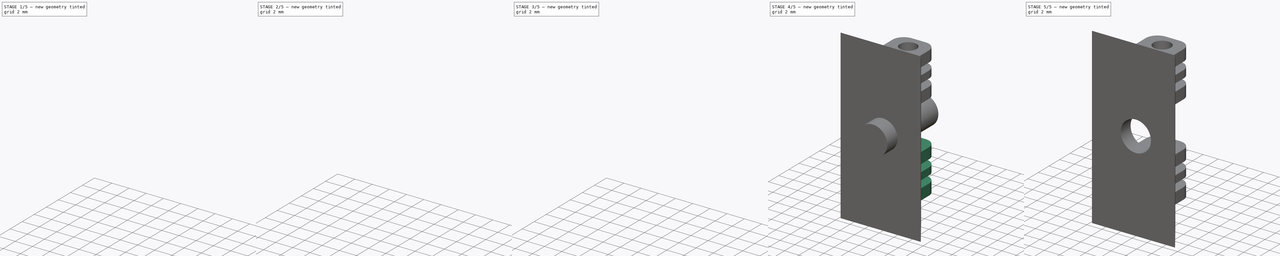
[diagram: build sequence overview — one tinted view per stage of 5, left to right]
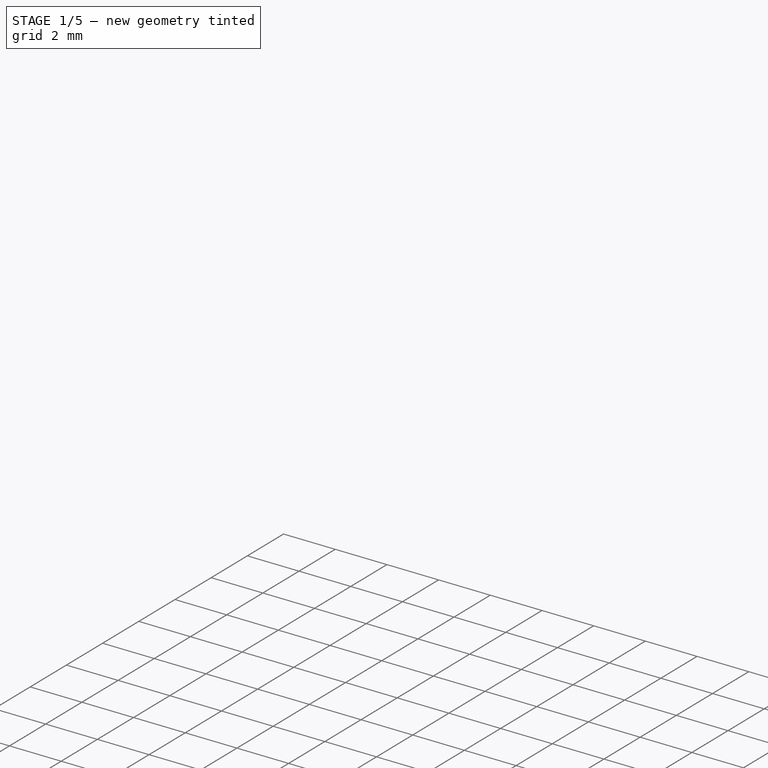
[diagram: stage 1 of 5 — iso view after this stage's code; geometry added in this stage tinted green]
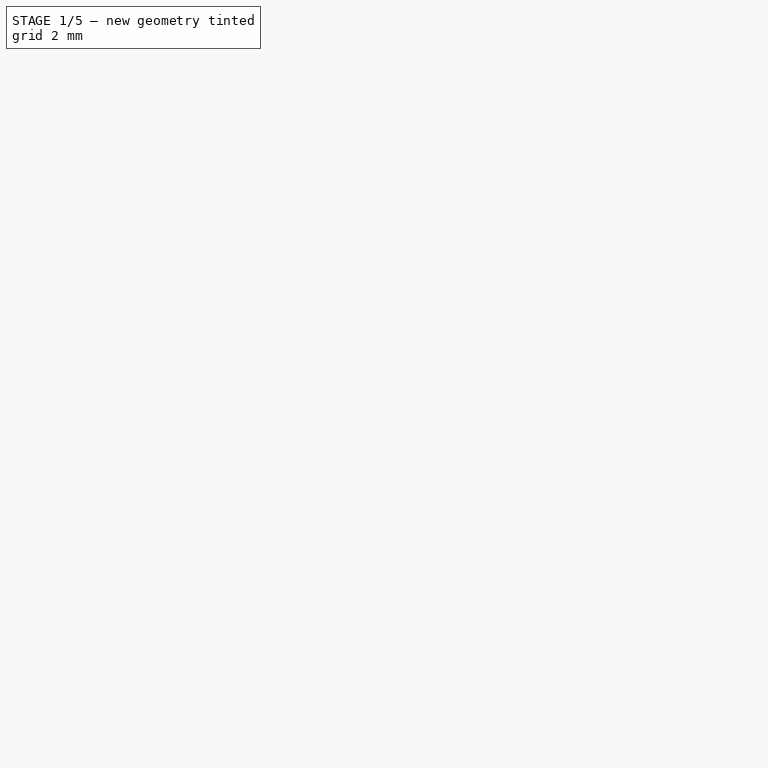
[diagram: stage 1 of 5 — front view after this stage's code; geometry added in this stage tinted green]
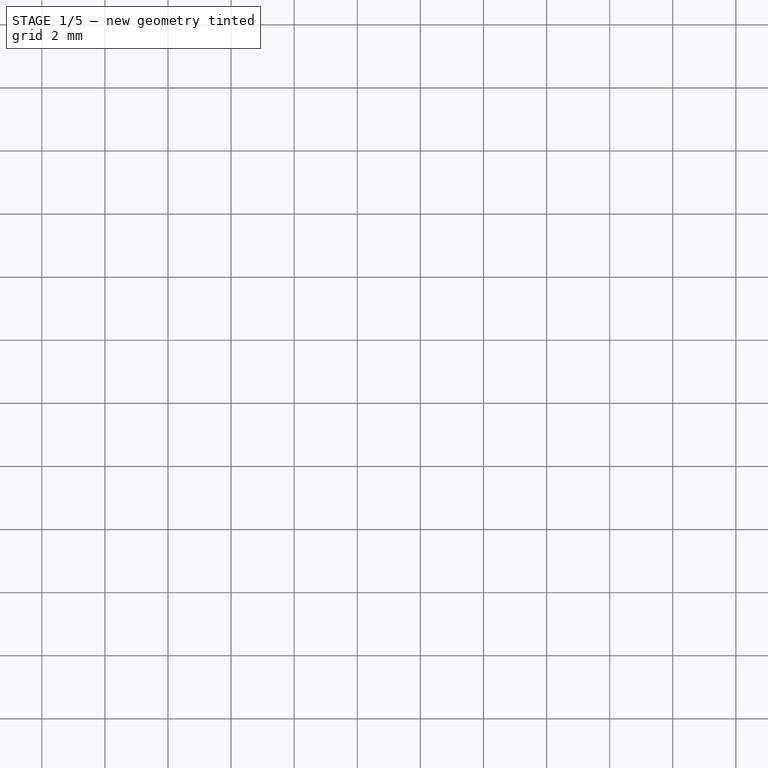
[diagram: stage 1 of 5 — top view after this stage's code; geometry added in this stage tinted green]
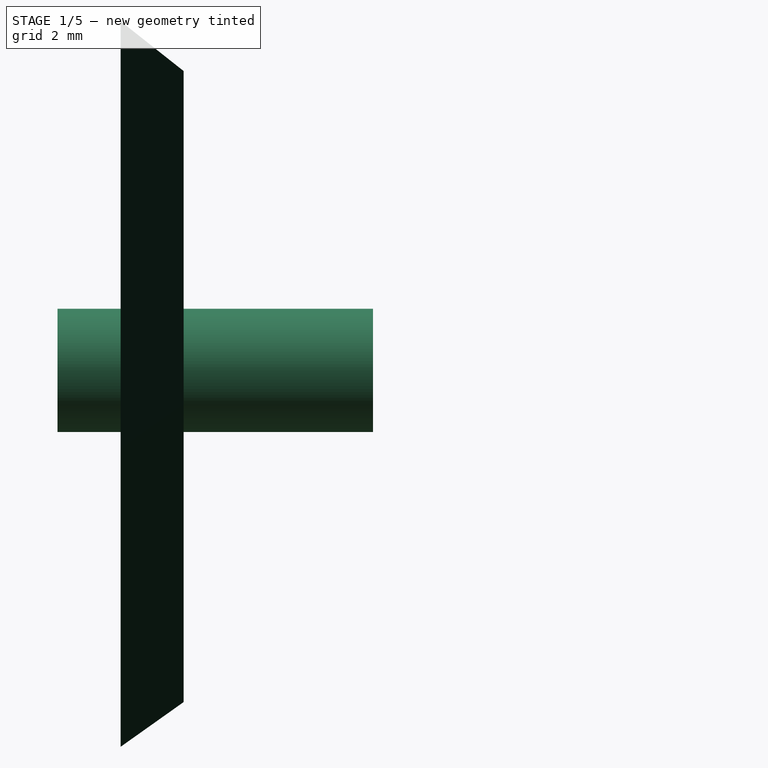
[diagram: stage 1 of 5 — right view after this stage's code; geometry added in this stage tinted green]
FCSTD DOCUMENT  (FreeCAD 0.16R6712 (Git))
Label: Base cabriada
License: All rights reserved
LicenseURL: http://en.wikipedia.org/wiki/All_rights_reserved
objects: Part::Cut×5, Sketcher::SketchObject×4, Part::Box×4, PartDesign::Pad×2, Part::Loft×1, Part::MultiFuse×1, Part::Cylinder×1, Part::Fillet×1
note: 21 computed .brp shape members not serialized (recipe doc carries the construction recipe); baked Part::Feature solids carry a one-line shape summary decoded from their .brp

FEATURE [Part::Box] Box374  label="Cubo373"
  Height = 1
  Length = 10
  Placement = pos=(-5,0.7,-1.5) rot=(0,0,1;0rad)
  Width = 10
FEATURE [Sketcher::SketchObject] Sketch017
  Placement = pos=(0,-7,0) rot=(1,0,0;1.5708rad)
  sketch-geometry (4):
    g0: LineSegment StartX=-238.671 StartY=-4.51199 StartZ=0 EndX=-230.671 EndY=-4.51199 EndZ=0
    g1: LineSegment StartX=-230.671 StartY=-4.51199 StartZ=0 EndX=-230.671 EndY=15.488 EndZ=0
    g2: LineSegment StartX=-230.671 StartY=15.488 StartZ=0 EndX=-238.671 EndY=15.488 EndZ=0
    g3: LineSegment StartX=-238.671 StartY=15.488 StartZ=0 EndX=-238.671 EndY=-4.51199 EndZ=0
  constraints (10):
    c: Coincident(g0,g1)
    c: Coincident(g1,g2)
    c: Coincident(g2,g3)
    c: Coincident(g3,g0)
    c: Horizontal(g0)
    c: Horizontal(g2)
    c: Vertical(g1)
    c: Vertical(g3)
    c: DistanceY(g3,g3) = 20
    c: DistanceX(g0,g0) = 8
FEATURE [Sketcher::SketchObject] Sketch018
  Placement = pos=(0,-9,-0.5) rot=(1,0,0;1.5708rad)
  sketch-geometry (4):
    g0: LineSegment StartX=-240.307 StartY=-5.43123 StartZ=0 EndX=-229.307 EndY=-5.43123 EndZ=0
    g1: LineSegment StartX=-229.307 StartY=-5.43123 StartZ=0 EndX=-229.307 EndY=17.5688 EndZ=0
    g2: LineSegment StartX=-229.307 StartY=17.5688 StartZ=0 EndX=-240.307 EndY=17.5688 EndZ=0
    g3: LineSegment StartX=-240.307 StartY=17.5688 StartZ=0 EndX=-240.307 EndY=-5.43123 EndZ=0
  constraints (10):
    c: Coincident(g0,g1)
    c: Coincident(g1,g2)
    c: Coincident(g2,g3)
    c: Coincident(g3,g0)
    c: Horizontal(g0)
    c: Horizontal(g2)
    c: Vertical(g1)
    c: Vertical(g3)
    c: DistanceY(g3,g3) = 23
    c: DistanceX(g0,g0) = 11
FEATURE [Part::Loft] Loft  label="Base inferior"
  Closed = false
  Placement = pos=(1,1,0) rot=(0,0,1;0rad)
  Ruled = false
  Sections = -> [Sketch018,Sketch017]
  Solid = true
FEATURE [Part::Cylinder] Cylinder  label="Cilindro"
  Angle = 360
  Height = 10
  Placement = pos=(-233.5,0,6) rot=(1,0,0;1.5708rad)
  Radius = 2
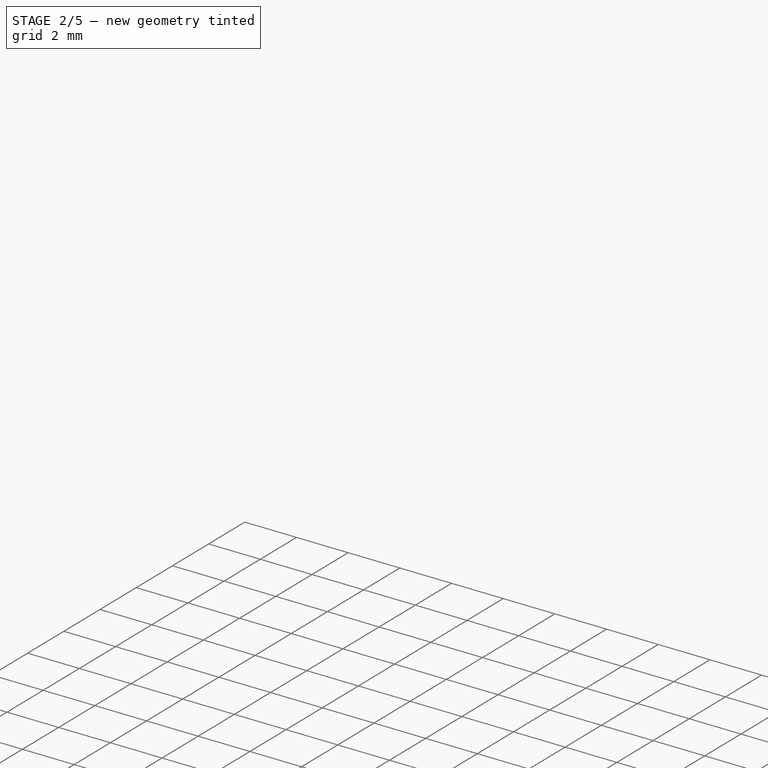
[diagram: stage 2 of 5 — iso view after this stage's code; geometry added in this stage tinted green]
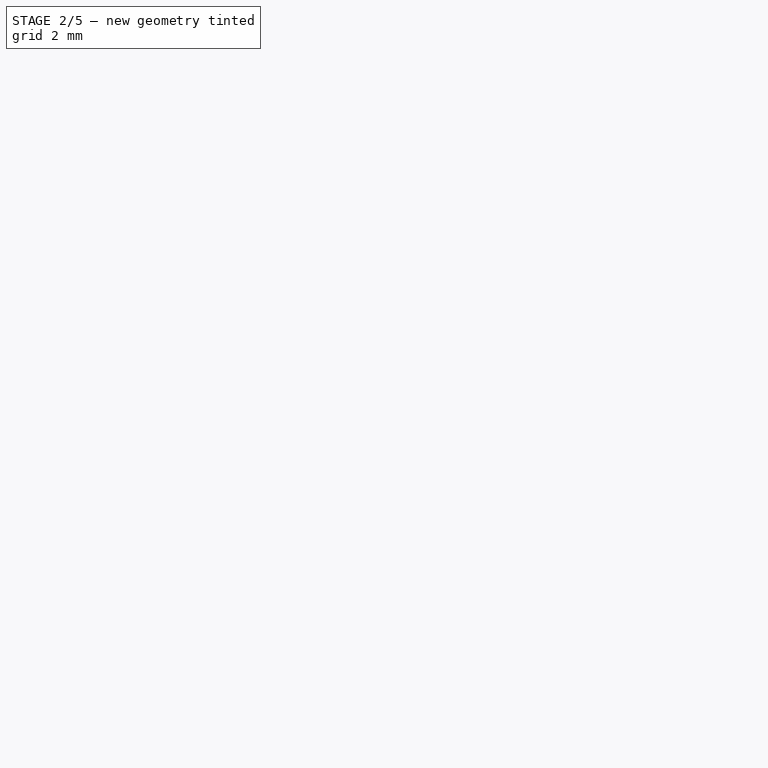
[diagram: stage 2 of 5 — front view after this stage's code; geometry added in this stage tinted green]
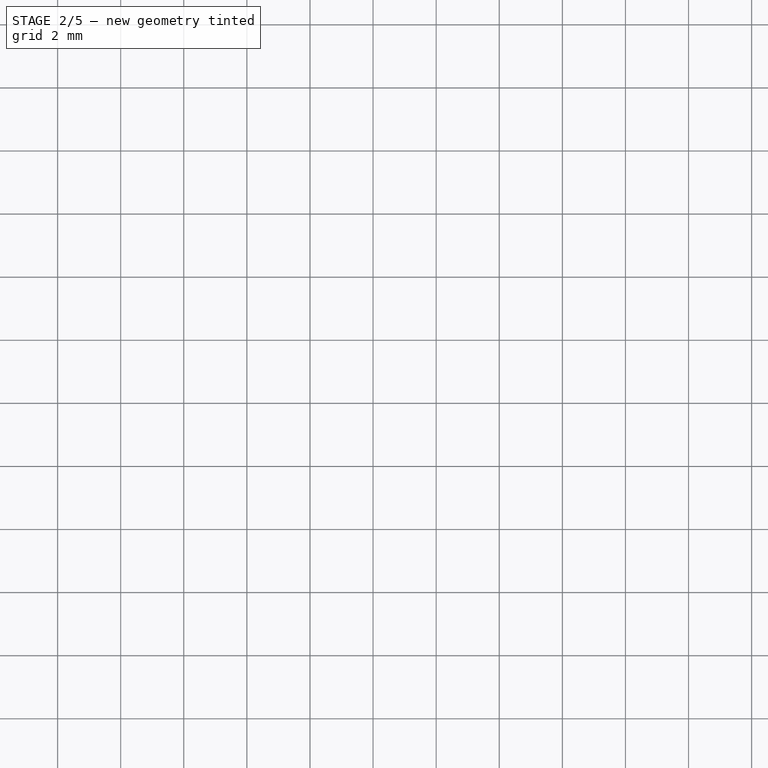
[diagram: stage 2 of 5 — top view after this stage's code; geometry added in this stage tinted green]
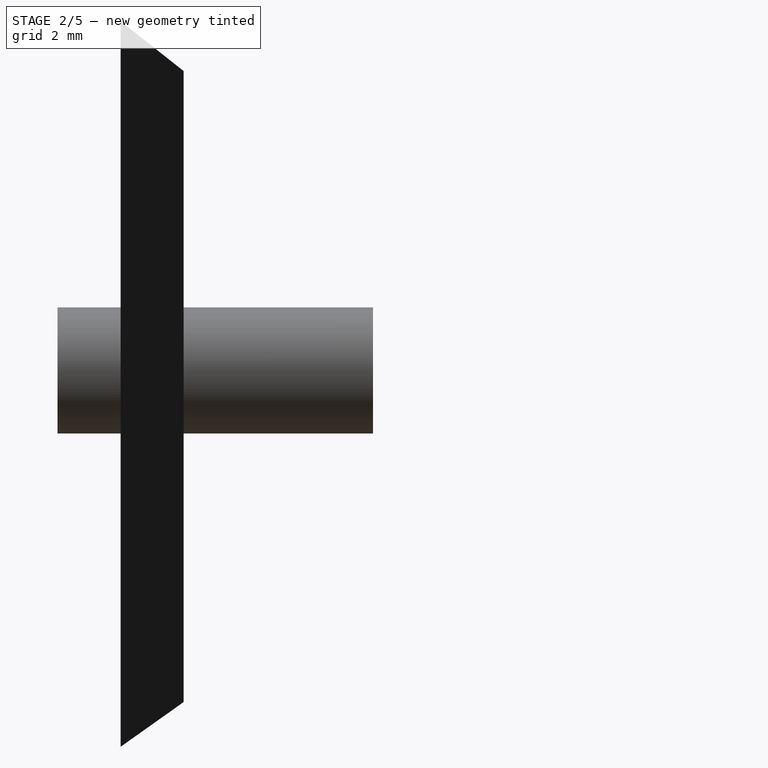
[diagram: stage 2 of 5 — right view after this stage's code; geometry added in this stage tinted green]
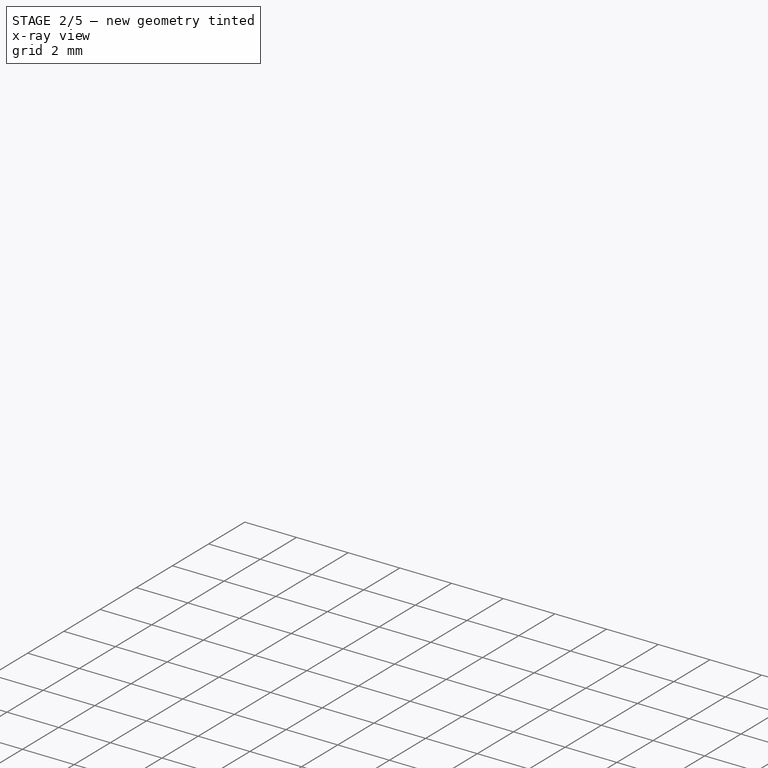
[diagram: stage 2 of 5 — x-ray composite at the iso view; earlier geometry ghosted, this stage's added geometry solid]
FEATURE [Sketcher::SketchObject] Sketch015
  sketch-geometry (7):
    g0: LineSegment StartX=-0.94599 StartY=5 StartZ=0 EndX=0.94599 EndY=5 EndZ=0
    g1: LineSegment StartX=2.5 StartY=3.44599 StartZ=0 EndX=2.5 EndY=0 EndZ=0
    g2: LineSegment StartX=2.5 StartY=0 StartZ=0 EndX=-2.5 EndY=0 EndZ=0
    g3: LineSegment StartX=-2.5 StartY=0 StartZ=0 EndX=-2.5 EndY=3.44599 EndZ=0
    g4: ArcOfCircle CenterX=0.94599 CenterY=3.44599 CenterZ=0 NormalX=0 NormalY=0 NormalZ=1 Radius=1.55401 StartAngle=0 EndAngle=1.5708
    g5: ArcOfCircle CenterX=-0.94599 CenterY=3.44599 CenterZ=0 NormalX=0 NormalY=0 NormalZ=1 Radius=1.55401 StartAngle=1.5708 EndAngle=3.14159
    g6: Circle CenterX=0 CenterY=2.97603 CenterZ=0 NormalX=0 NormalY=0 NormalZ=1 Radius=1.15
  constraints (19):
    c: Coincident(g1,g2)
    c: Coincident(g2,g3)
    c: Horizontal(g0)
    c: Horizontal(g2)
    c: Vertical(g1)
    c: Vertical(g3)
    c: PointOnObject(g1,g-1)
    c: Tangent(g0,g4) = 1.5708
    c: Tangent(g1,g4) = 1.5708
    c: Tangent(g0,g5) = 1.5708
    c: Tangent(g3,g5) = 1.5708
    c: Symmetric(g2,g1,g-2)
    c: Equal(g4,g5)
    c: DistanceX(g2,g2) = 5
    c: DistanceY(g1,g0) = 5
    c: PointOnObject(g6,g-2)
    c: Radius(g6) = 1.15
    c: Radius(g5) = 1.55401
    c: DistanceY(g2,g6) = 2.97603
FEATURE [PartDesign::Pad] Pad001  label="Pivote del piso001"
  Length = 6
  Length2 = 100
  Midplane = true
  Sketch = -> Sketch015
  Type = 0
FEATURE [Part::Box] Box375  label="Cubo374"
  Height = 1
  Length = 10
  Placement = pos=(-6,0.7,0.5) rot=(0,0,1;0rad)
  Width = 10
FEATURE [Part::Cut] Cut103
  Base = -> Pad001
  Tool = -> Box374
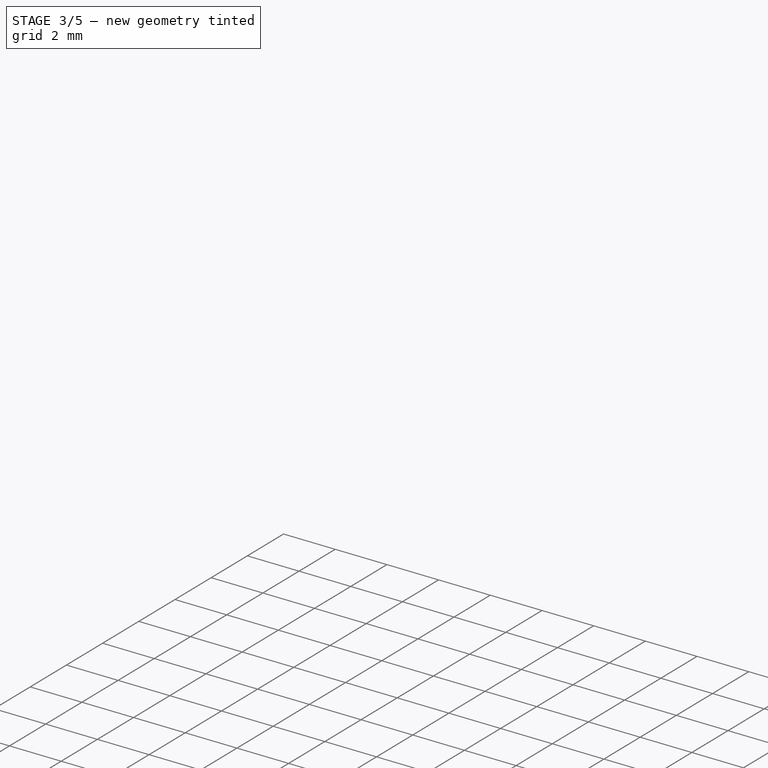
[diagram: stage 3 of 5 — iso view after this stage's code; geometry added in this stage tinted green]
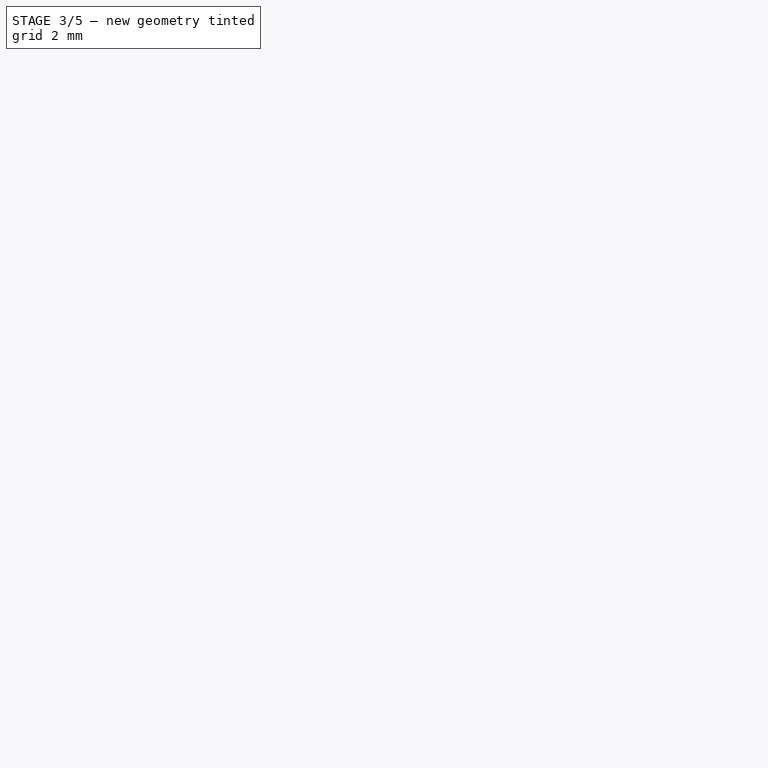
[diagram: stage 3 of 5 — front view after this stage's code; geometry added in this stage tinted green]
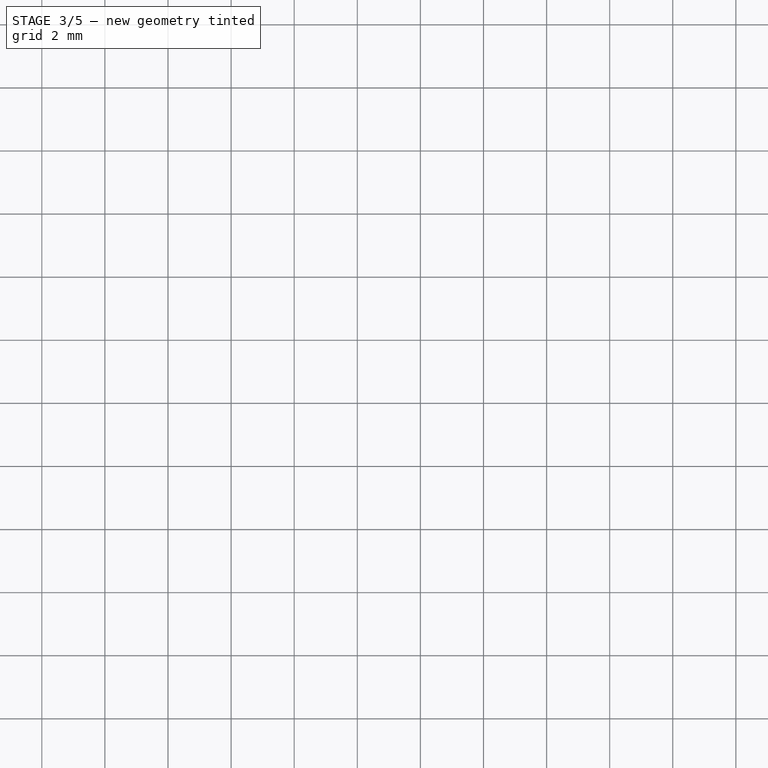
[diagram: stage 3 of 5 — top view after this stage's code; geometry added in this stage tinted green]
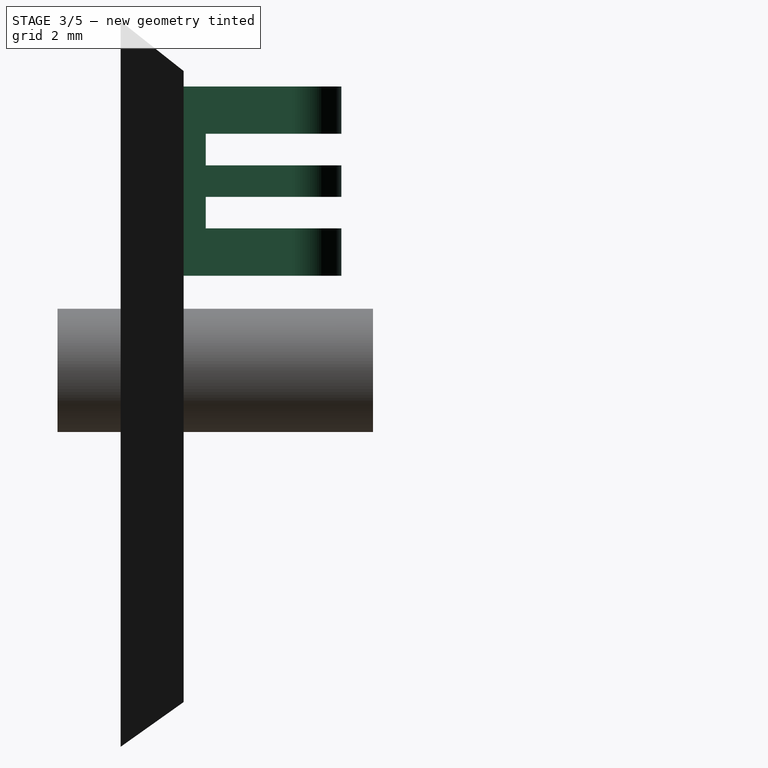
[diagram: stage 3 of 5 — right view after this stage's code; geometry added in this stage tinted green]
FEATURE [Sketcher::SketchObject] Sketch003
  sketch-geometry (7):
    g0: LineSegment StartX=-0.94599 StartY=5 StartZ=0 EndX=0.94599 EndY=5 EndZ=0
    g1: LineSegment StartX=2.5 StartY=3.44599 StartZ=0 EndX=2.5 EndY=0 EndZ=0
    g2: LineSegment StartX=2.5 StartY=0 StartZ=0 EndX=-2.5 EndY=0 EndZ=0
    g3: LineSegment StartX=-2.5 StartY=0 StartZ=0 EndX=-2.5 EndY=3.44599 EndZ=0
    g4: ArcOfCircle CenterX=0.94599 CenterY=3.44599 CenterZ=0 NormalX=0 NormalY=0 NormalZ=1 Radius=1.55401 StartAngle=0 EndAngle=1.5708
    g5: ArcOfCircle CenterX=-0.94599 CenterY=3.44599 CenterZ=0 NormalX=0 NormalY=0 NormalZ=1 Radius=1.55401 StartAngle=1.5708 EndAngle=3.14159
    g6: Circle CenterX=0 CenterY=2.97603 CenterZ=0 NormalX=0 NormalY=0 NormalZ=1 Radius=1.15
  constraints (19):
    c: Coincident(g1,g2)
    c: Coincident(g2,g3)
    c: Horizontal(g0)
    c: Horizontal(g2)
    c: Vertical(g1)
    c: Vertical(g3)
    c: PointOnObject(g1,g-1)
    c: Tangent(g0,g4) = 1.5708
    c: Tangent(g1,g4) = 1.5708
    c: Tangent(g0,g5) = 1.5708
    c: Tangent(g3,g5) = 1.5708
    c: Symmetric(g2,g1,g-2)
    c: Equal(g4,g5)
    c: DistanceX(g2,g2) = 5
    c: DistanceY(g1,g0) = 5
    c: PointOnObject(g6,g-2)
    c: Radius(g6) = 1.15
    c: Radius(g5) = 1.55401
    c: DistanceY(g2,g6) = 2.97603
FEATURE [PartDesign::Pad] Pad  label="Pivote del piso"
  Length = 6
  Length2 = 100
  Midplane = true
  Sketch = -> Sketch003
  Type = 0
FEATURE [Part::Box] Box002  label="Cubo002"
  Height = 1
  Length = 10
  Placement = pos=(-5,0.7,-1.5) rot=(0,0,1;0rad)
  Width = 10
FEATURE [Part::Cut] Cut104  label="Pivote Piso001"
  Base = -> Cut103
  Placement = pos=(-233.5,-6,12) rot=(0,0,1;0rad)
  Tool = -> Box375
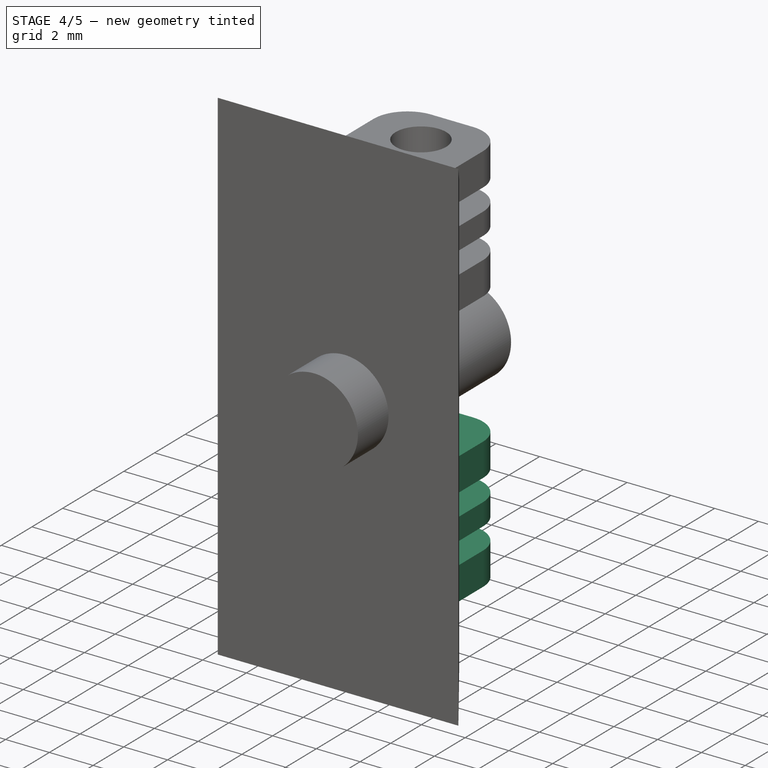
[diagram: stage 4 of 5 — iso view after this stage's code; geometry added in this stage tinted green]
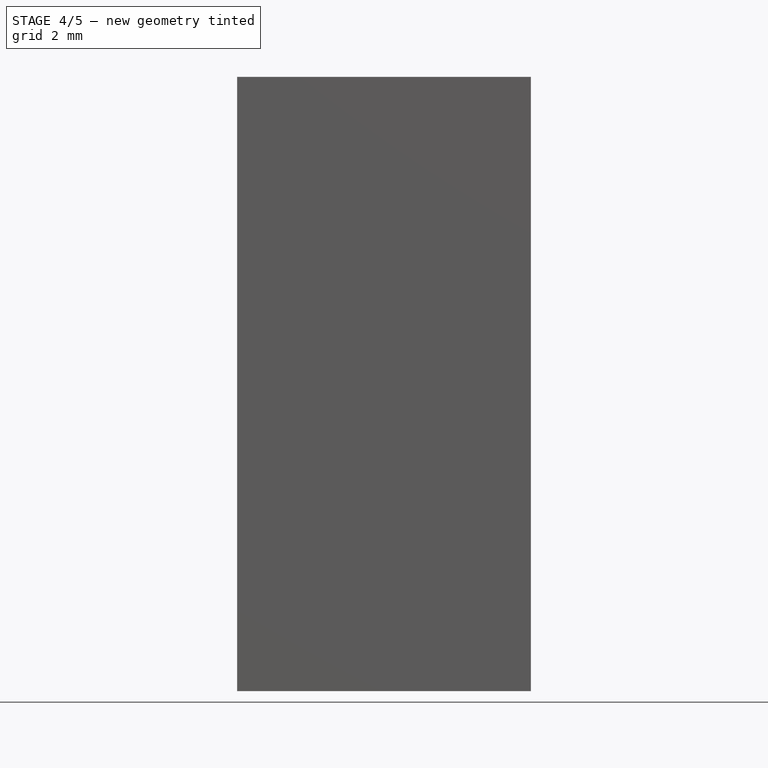
[diagram: stage 4 of 5 — front view after this stage's code; geometry added in this stage tinted green]
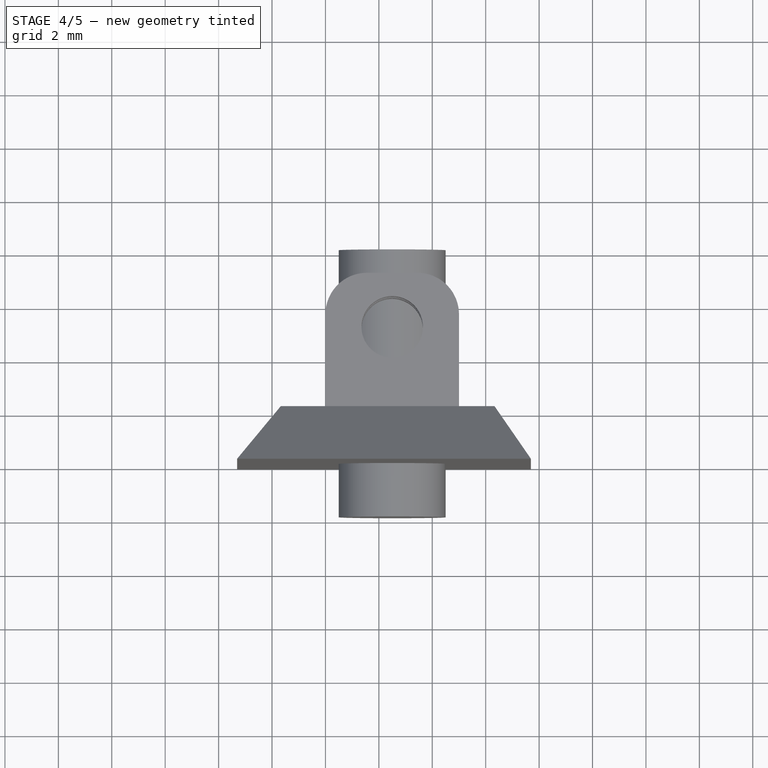
[diagram: stage 4 of 5 — top view after this stage's code; geometry added in this stage tinted green]
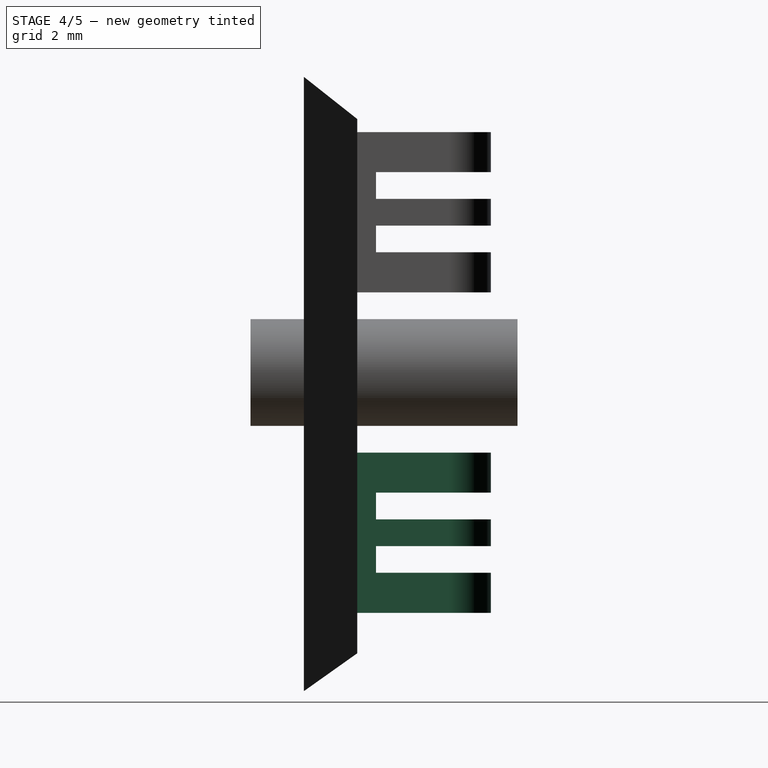
[diagram: stage 4 of 5 — right view after this stage's code; geometry added in this stage tinted green]
FEATURE [Part::Box] Box004  label="Cubo004"
  Height = 1
  Length = 10
  Placement = pos=(-6,0.7,0.5) rot=(0,0,1;0rad)
  Width = 10
FEATURE [Part::Cut] Cut004
  Base = -> Pad
  Tool = -> Box002
FEATURE [Part::Cut] Cut005  label="Pivote Piso"
  Base = -> Cut004
  Placement = pos=(-233.5,-6,0) rot=(0,0,1;0rad)
  Tool = -> Box004
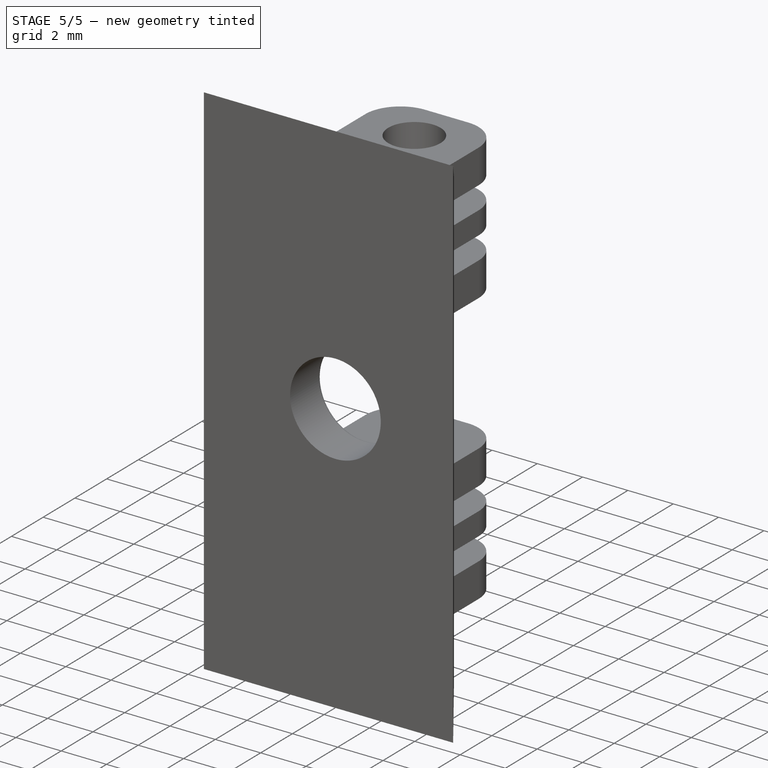
[diagram: stage 5 of 5 — iso view after this stage's code; geometry added in this stage tinted green]
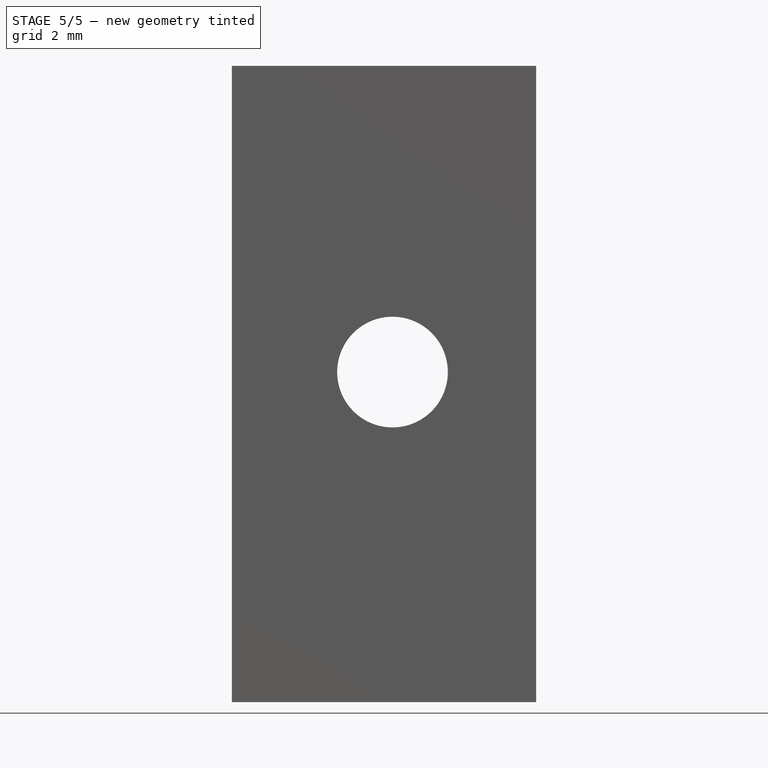
[diagram: stage 5 of 5 — front view after this stage's code; geometry added in this stage tinted green]
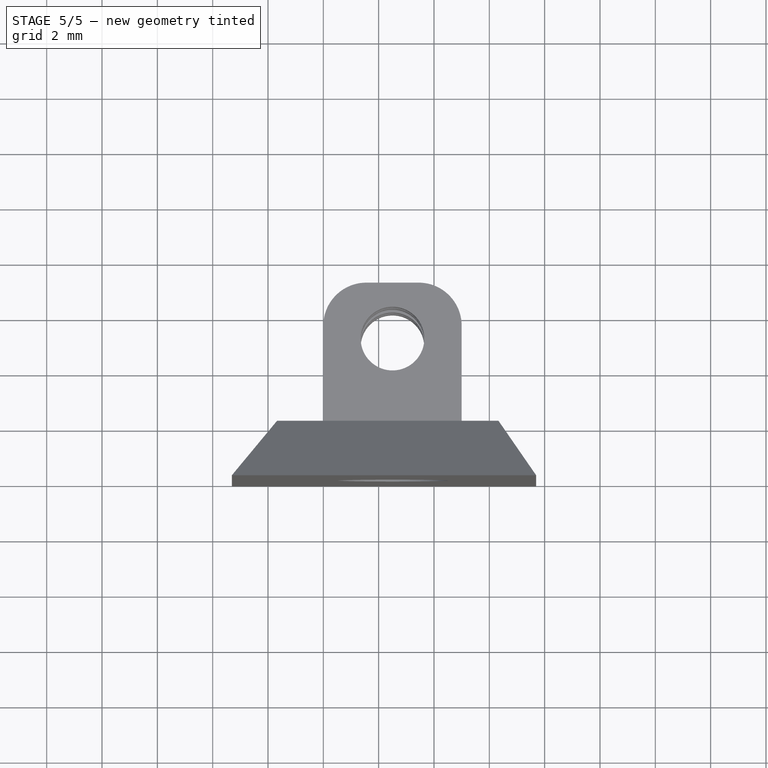
[diagram: stage 5 of 5 — top view after this stage's code; geometry added in this stage tinted green]
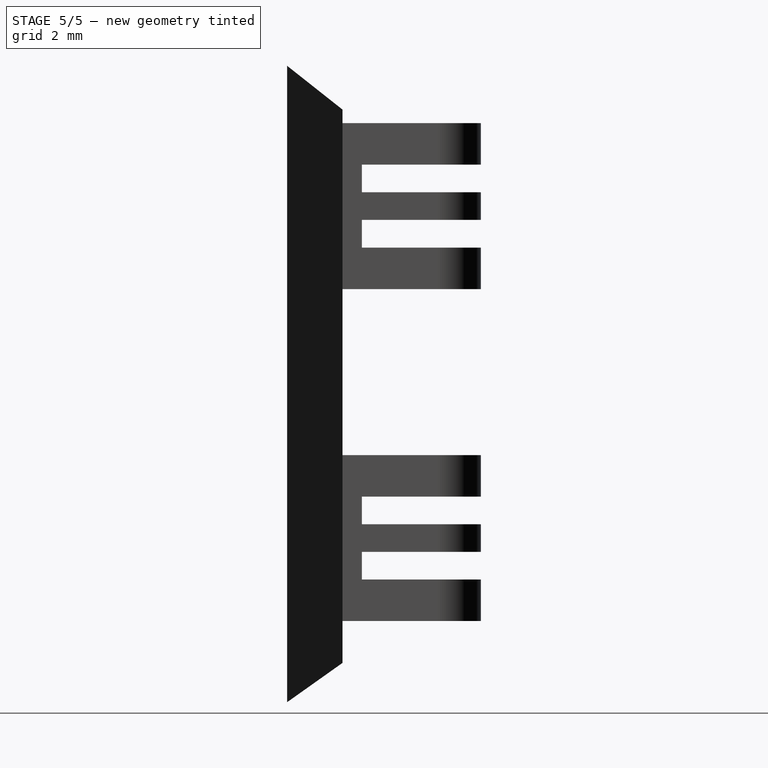
[diagram: stage 5 of 5 — right view after this stage's code; geometry added in this stage tinted green]
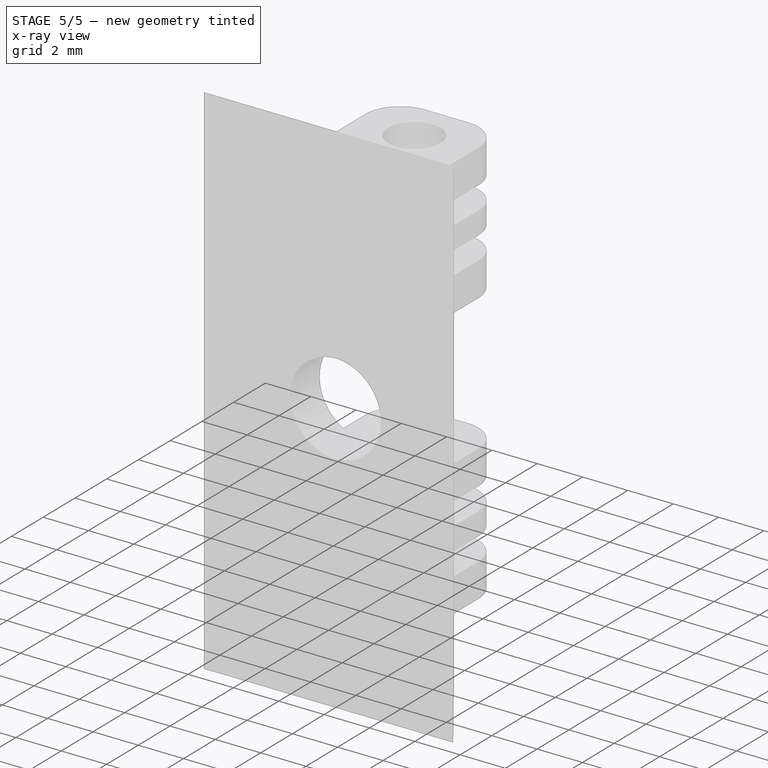
[diagram: stage 5 of 5 — x-ray composite at the iso view; earlier geometry ghosted, this stage's added geometry solid]
FEATURE [Part::MultiFuse] Fusion067
  Shapes = -> [Loft,Cut005,Cut104]
FEATURE [Part::Cut] Cut105  label="Base cabriadas"
  Base = -> Fusion067
  Tool = -> Cylinder
FEATURE [Part::Fillet] Fillet  label="Base cabriada"
  Base = -> Cut105
  Edges = 1 edges r=0.2: [Edge13]
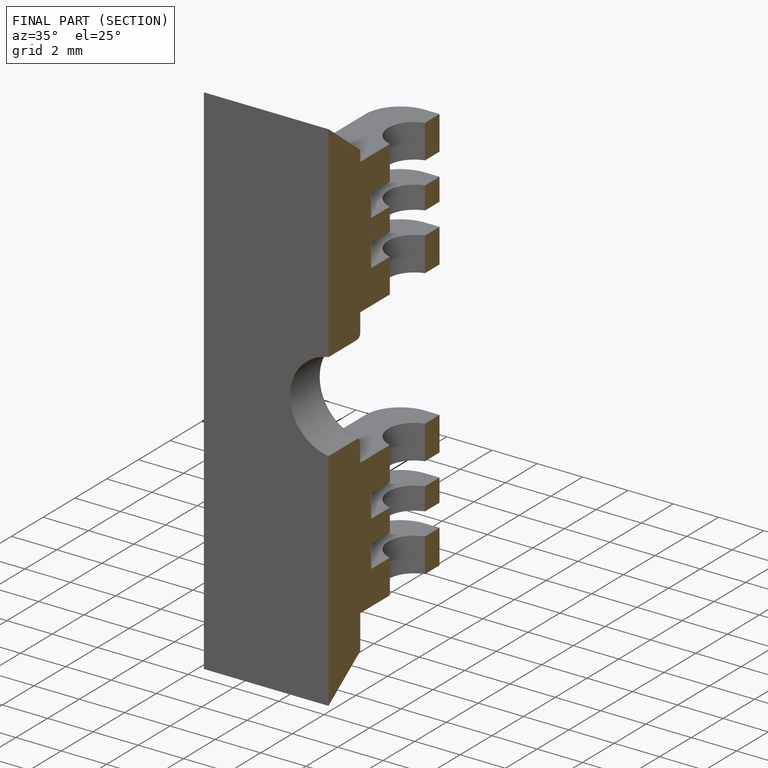
[diagram: finished part — half-section view (interior)]
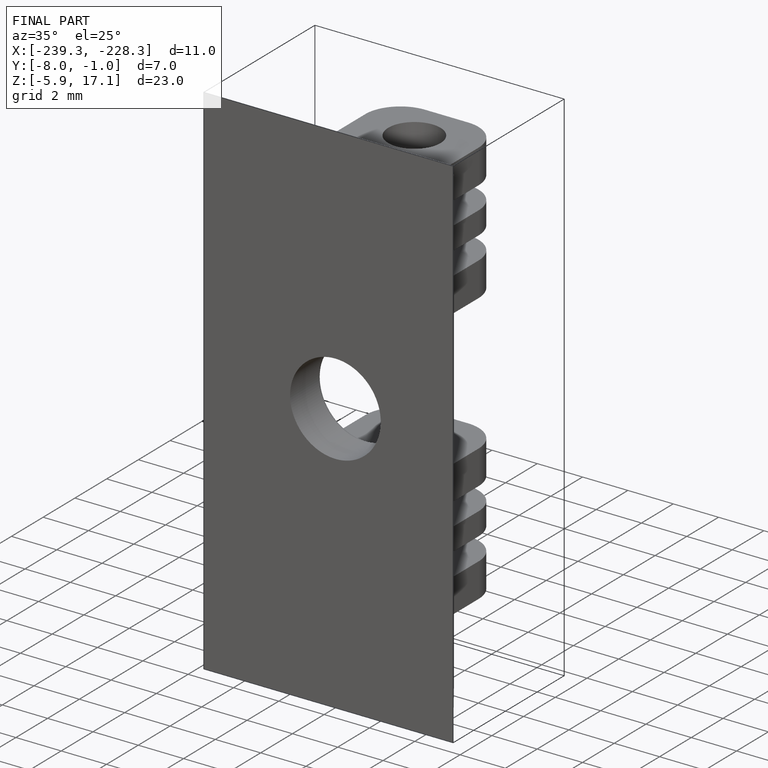
[diagram: finished part — iso view with bounding-box wireframe]
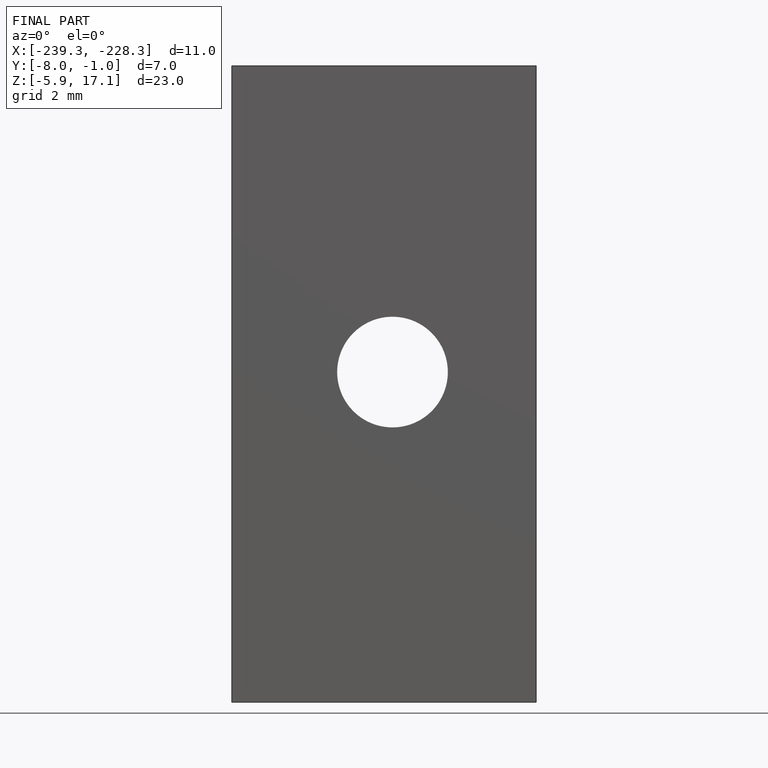
[diagram: finished part — front view with bounding-box wireframe]
